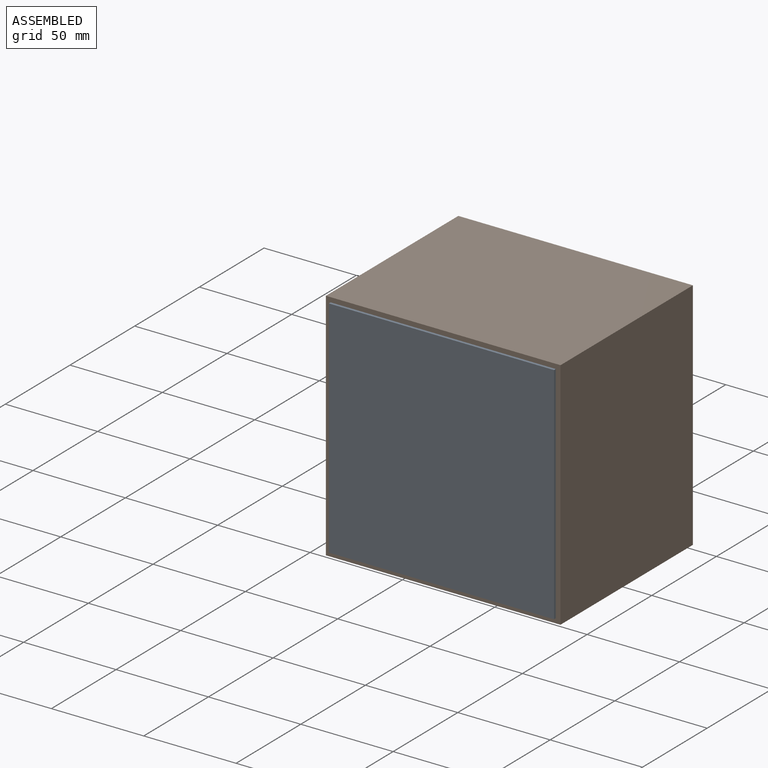
[diagram: assembled view]
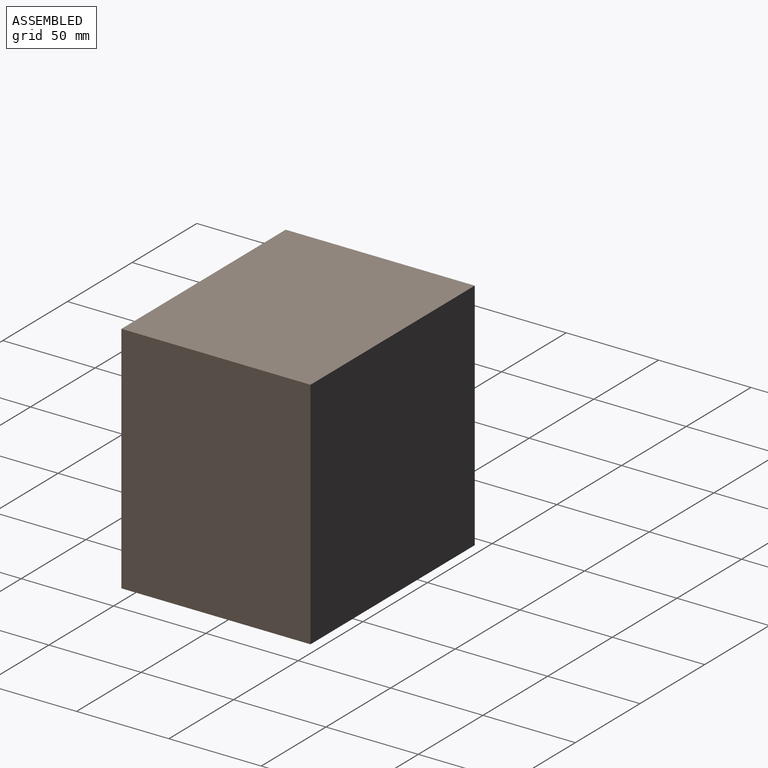
[diagram: assembled view, second angle]
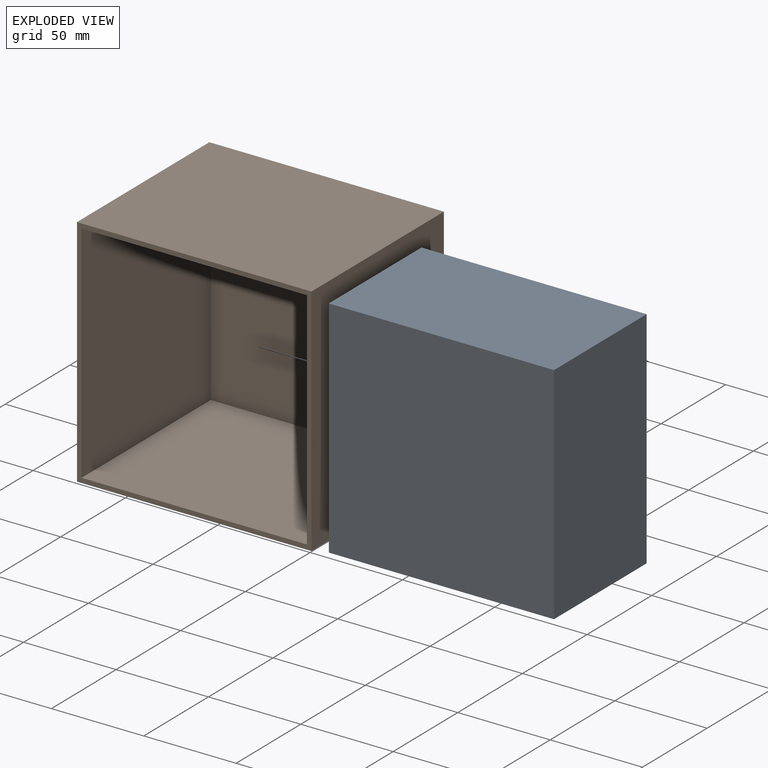
[diagram: exploded view]
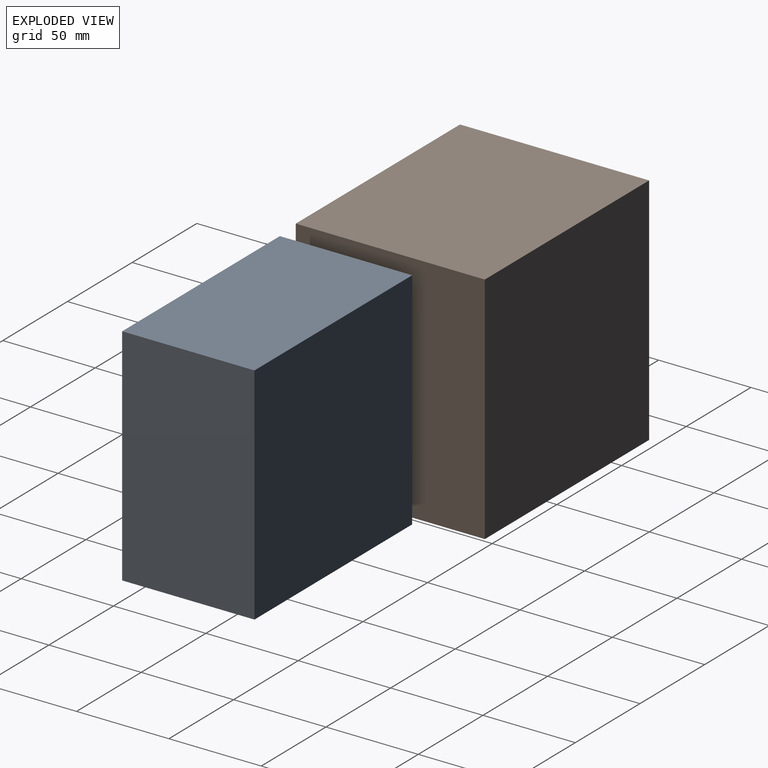
[diagram: exploded view, second angle]
ASSEMBLY  parts=2 mates=2
PART A: 6 faces, bbox 121.9x71.6x121.9 mm
  f0: plane 121.92x71.63mm, normal (1,0,0), area 8732.9mm2, adj f1,f3,f4,f5
  f1: plane 121.92x71.63mm, normal (0,0,1), area 8732.9mm2, adj f0,f2,f4,f5
  f2: plane 121.92x71.63mm, normal (-1,0,0), area 8732.9mm2, adj f1,f3,f4,f5
  f3: plane 121.92x71.63mm, normal (0,0,-1), area 8732.9mm2, adj f0,f2,f4,f5
  f4: plane 121.92x121.92mm, normal (0,-1,0), area 14864.5mm2, adj f0,f1,f2,f3
  f5: plane 121.92x121.92mm, normal (0,1,0), area 14864.5mm2, adj f0,f1,f2,f3
PART B: 11 faces, bbox 127x102.4x127 mm
  f0: plane 127x127mm, normal (0,-1,0), area 1264.5mm2, adj f1,f2,f3,f4,f6,f7,f8,f9
  f1: plane 127x102.36mm, normal (1,0,0), area 13000mm2, adj f0,f2,f4,f5
  f2: plane 127x102.36mm, normal (0,0,1), area 13000mm2, adj f0,f1,f3,f5
  f3: plane 127x102.36mm, normal (-1,0,0), area 13000mm2, adj f0,f2,f4,f5
  f4: plane 127x102.36mm, normal (0,0,-1), area 13000mm2, adj f0,f1,f3,f5
  f5: plane 127x127mm, normal (0,1,0), area 16129mm2, adj f1,f2,f3,f4
  f6: plane 121.92x99.82mm, normal (-1,0,0), area 12170.3mm2, adj f0,f7,f9,f10
  f7: plane 121.92x99.82mm, normal (0,0,-1), area 12170.3mm2, adj f0,f6,f8,f10
  f8: plane 121.92x99.82mm, normal (1,0,0), area 12170.3mm2, adj f0,f7,f9,f10
  f9: plane 121.92x99.82mm, normal (0,0,1), area 12170.3mm2, adj f0,f6,f8,f10
  f10: plane 121.92x121.92mm, normal (0,-1,0), area 14864.5mm2, adj f6,f7,f8,f9
PLACE A t=(-75.18,-83.63,-26.7)mm
PLACE B t=(-75.18,-51.52,-26.7)mm
MATE planar A.f0 <-> B.f6  axis (1,0,0) through (-14.22,-119.45,-26.7)mm
MATE planar A.f1 <-> B.f7  axis (0,0,1) through (-75.18,-83.63,34.26)mm
